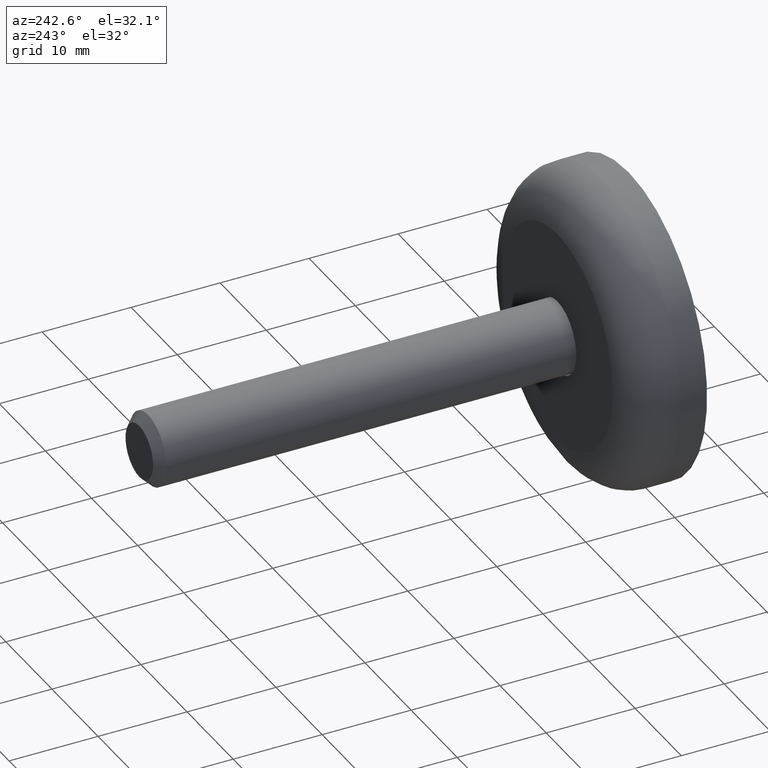
[diagram: clean part render]
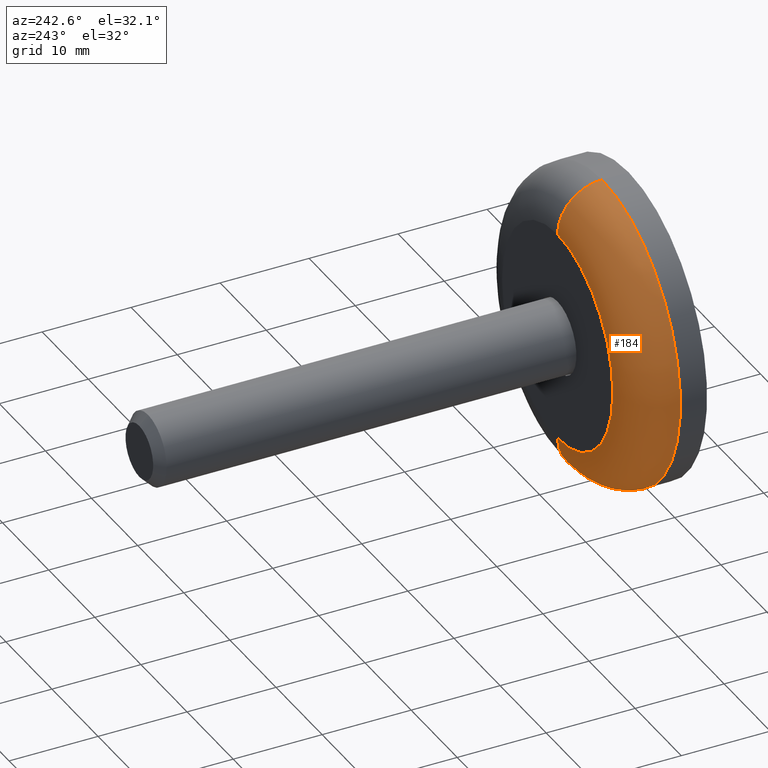
[diagram: same view with one face highlighted and labeled with its STEP entity id]
A machine part, auxiliary view. The second image highlights one B-rep face of the part: STEP entity #184.
In plain terms, the highlighted toroidal blend (fillet) surface has major radius 12 mm and minor (blend) radius 5 mm.
Its self-contained STEP definition (entity closure, byte-faithful):
#36 = CARTESIAN_POINT ( 'NONE',  ( 0.000000000000000000, 7.999999999999998224, 0.000000000000000000 ) ) ;
#184 = ADVANCED_FACE ( 'NONE', ( #9949 ), #12759, .T. ) ;
#345 = DIRECTION ( 'NONE',  ( 0.000000000000000000, 0.000000000000000000, 1.000000000000000000 ) ) ;
#387 = EDGE_CURVE ( 'NONE', #11889, #4924, #7840, .T. ) ;
#1269 = CARTESIAN_POINT ( 'NONE',  ( 1.469576158976823947E-15, 2.999999999999998224, -12.00000000000000000 ) ) ;
#1325 = DIRECTION ( 'NONE',  ( 1.000000000000000000, -0.000000000000000000, 1.224646799147353207E-16 ) ) ;
#1704 = AXIS2_PLACEMENT_3D ( 'NONE', #4711, #14334, #15529 ) ;
#2019 = AXIS2_PLACEMENT_3D ( 'NONE', #1269, #1325, #12051 ) ;
#2648 = ORIENTED_EDGE ( 'NONE', *, *, #8026, .F. ) ;
#3129 = EDGE_CURVE ( 'NONE', #13102, #10227, #14384, .T. ) ;
#3412 = DIRECTION ( 'NONE',  ( -0.000000000000000000, -1.000000000000000000, -0.000000000000000000 ) ) ;
#4029 = CARTESIAN_POINT ( 'NONE',  ( 0.000000000000000000, 7.999999999999998224, 12.00000000000000000 ) ) ;
#4526 = DIRECTION ( 'NONE',  ( 0.000000000000000000, 0.000000000000000000, 1.000000000000000000 ) ) ;
#4578 = CARTESIAN_POINT ( 'NONE',  ( 0.000000000000000000, 2.999999999999998224, 0.000000000000000000 ) ) ;
#4711 = CARTESIAN_POINT ( 'NONE',  ( 0.000000000000000000, 2.999999999999998224, 12.00000000000000000 ) ) ;
#4924 = VERTEX_POINT ( 'NONE', #4029 ) ;
#5070 = AXIS2_PLACEMENT_3D ( 'NONE', #12349, #7688, #345 ) ;
#5354 = ORIENTED_EDGE ( 'NONE', *, *, #387, .T. ) ;
#5401 = ORIENTED_EDGE ( 'NONE', *, *, #6080, .F. ) ;
#5446 = CIRCLE ( 'NONE', #14210, 12.00000000000000000 ) ;
#5706 = AXIS2_PLACEMENT_3D ( 'NONE', #4578, #3412, #4526 ) ;
#6080 = EDGE_CURVE ( 'NONE', #10227, #4924, #5446, .T. ) ;
#6190 = CIRCLE ( 'NONE', #5706, 17.00000000000000000 ) ;
#7688 = DIRECTION ( 'NONE',  ( 0.000000000000000000, 1.000000000000000000, 0.000000000000000000 ) ) ;
#7840 = CIRCLE ( 'NONE', #1704, 5.000000000000000888 ) ;
#8026 = EDGE_CURVE ( 'NONE', #11889, #13102, #6190, .T. ) ;
#8507 = DIRECTION ( 'NONE',  ( 0.000000000000000000, 1.000000000000000000, 0.000000000000000000 ) ) ;
#8807 = CARTESIAN_POINT ( 'NONE',  ( 0.000000000000000000, 2.999999999999998224, -17.00000000000000000 ) ) ;
#9152 = CARTESIAN_POINT ( 'NONE',  ( 1.775737858763662015E-15, 7.999999999999998224, -12.00000000000000000 ) ) ;
#9949 = FACE_OUTER_BOUND ( 'NONE', #11261, .T. ) ;
#10227 = VERTEX_POINT ( 'NONE', #9152 ) ;
#10976 = DIRECTION ( 'NONE',  ( 0.000000000000000000, 0.000000000000000000, 1.000000000000000000 ) ) ;
#11261 = EDGE_LOOP ( 'NONE', ( #12425, #2648, #5354, #5401 ) ) ;
#11889 = VERTEX_POINT ( 'NONE', #14144 ) ;
#12051 = DIRECTION ( 'NONE',  ( 1.224646799147352961E-16, 0.000000000000000000, -1.000000000000000000 ) ) ;
#12349 = CARTESIAN_POINT ( 'NONE',  ( 0.000000000000000000, 2.999999999999998224, 0.000000000000000000 ) ) ;
#12425 = ORIENTED_EDGE ( 'NONE', *, *, #3129, .F. ) ;
#12759 = TOROIDAL_SURFACE ( 'NONE', #5070, 12.00000000000000000, 5.000000000000000000 ) ;
#13102 = VERTEX_POINT ( 'NONE', #8807 ) ;
#14144 = CARTESIAN_POINT ( 'NONE',  ( 2.081899558550500280E-15, 2.999999999999998224, 17.00000000000000000 ) ) ;
#14210 = AXIS2_PLACEMENT_3D ( 'NONE', #36, #8507, #10976 ) ;
#14334 = DIRECTION ( 'NONE',  ( -1.000000000000000000, 0.000000000000000000, 0.000000000000000000 ) ) ;
#14384 = CIRCLE ( 'NONE', #2019, 5.000000000000000888 ) ;
#15529 = DIRECTION ( 'NONE',  ( 0.000000000000000000, 0.000000000000000000, 1.000000000000000000 ) ) ;